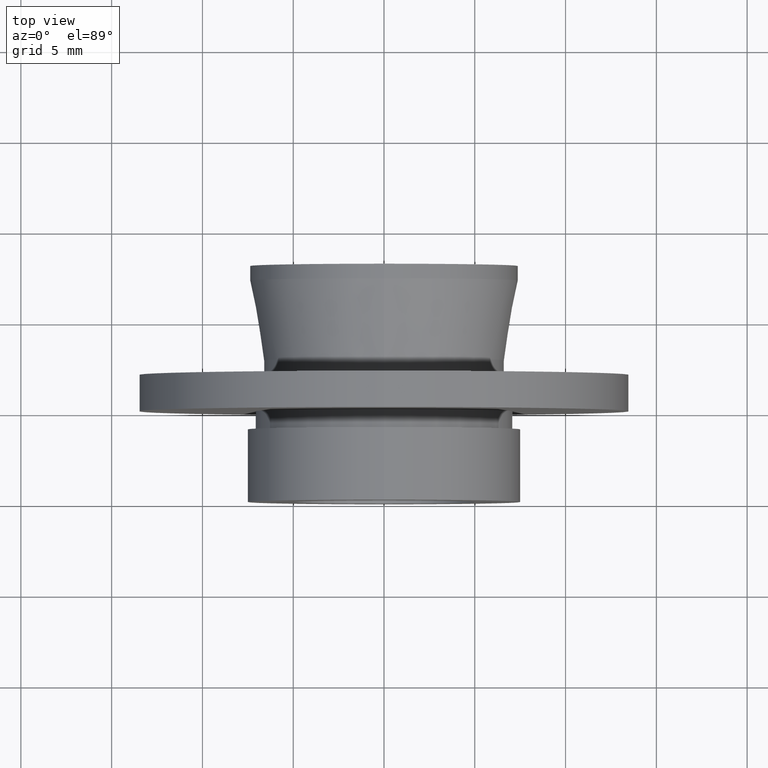
[diagram: clean part render]
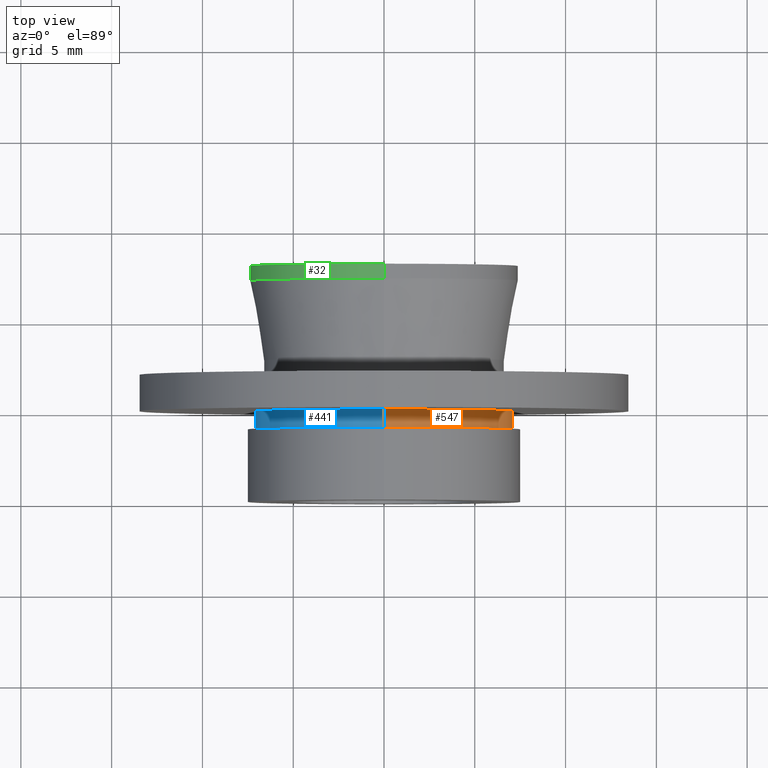
[diagram: same view with three faces highlighted in distinct colors, each labeled with its STEP entity id]
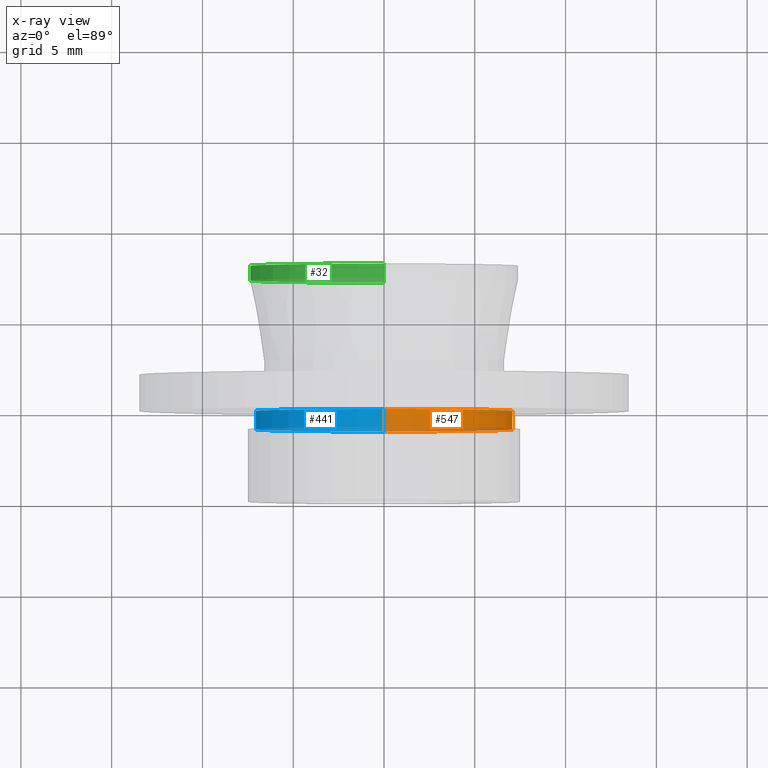
[diagram: x-ray of the same camera — body ghosted, the three highlighted faces saturated]
A machine part, top view with three faces highlighted in distinct colors.
The next image is the same camera in x-ray (body ghosted, the three faces saturated) — at least one of them is partly hidden behind the body in this view.
Their STEP definitions:

[orange] entity #547 — the highlighted cylindrical surface (partial cylindrical patch) has radius 7.1 mm, axis along (-0, -1, -0).
#31 = AXIS2_PLACEMENT_3D ( 'NONE', #145, #192, #248 ) ;
#39 = VERTEX_POINT ( 'NONE', #415 ) ;
#49 = CARTESIAN_POINT ( 'NONE',  ( 8.694992273946205800E-016, 0.0000000000000000000, 7.099999999999998800 ) ) ;
#53 = EDGE_CURVE ( 'NONE', #414, #336, #608, .T. ) ;
#79 = ORIENTED_EDGE ( 'NONE', *, *, #550, .T. ) ;
#101 = AXIS2_PLACEMENT_3D ( 'NONE', #281, #552, #385 ) ;
#124 = CARTESIAN_POINT ( 'NONE',  ( 0.0000000000000000000, 4.999999999999996400, -7.099999999999998800 ) ) ;
#145 = CARTESIAN_POINT ( 'NONE',  ( 0.0000000000000000000, 0.0000000000000000000, 0.0000000000000000000 ) ) ;
#158 = DIRECTION ( 'NONE',  ( -0.0000000000000000000, -1.000000000000000000, -0.0000000000000000000 ) ) ;
#161 = ORIENTED_EDGE ( 'NONE', *, *, #53, .T. ) ;
#192 = DIRECTION ( 'NONE',  ( -0.0000000000000000000, -1.000000000000000000, -0.0000000000000000000 ) ) ;
#213 = AXIS2_PLACEMENT_3D ( 'NONE', #420, #158, #635 ) ;
#234 = LINE ( 'NONE', #236, #663 ) ;
#236 = CARTESIAN_POINT ( 'NONE',  ( 0.0000000000000000000, 0.0000000000000000000, -7.099999999999998800 ) ) ;
#238 = CARTESIAN_POINT ( 'NONE',  ( 0.0000000000000000000, 3.999999999999996400, -7.099999999999999600 ) ) ;
#244 = CYLINDRICAL_SURFACE ( 'NONE', #31, 7.099999999999998800 ) ;
#248 = DIRECTION ( 'NONE',  ( 0.0000000000000000000, 0.0000000000000000000, -1.000000000000000000 ) ) ;
#258 = ORIENTED_EDGE ( 'NONE', *, *, #392, .F. ) ;
#281 = CARTESIAN_POINT ( 'NONE',  ( 0.0000000000000000000, 3.999999999999996400, 0.0000000000000000000 ) ) ;
#286 = EDGE_CURVE ( 'NONE', #368, #39, #382, .T. ) ;
#291 = LINE ( 'NONE', #49, #381 ) ;
#336 = VERTEX_POINT ( 'NONE', #556 ) ;
#360 = FACE_OUTER_BOUND ( 'NONE', #591, .T. ) ;
#368 = VERTEX_POINT ( 'NONE', #238 ) ;
#381 = VECTOR ( 'NONE', #455, 1000.000000000000000 ) ;
#382 = CIRCLE ( 'NONE', #101, 7.099999999999999600 ) ;
#385 = DIRECTION ( 'NONE',  ( 0.0000000000000000000, 0.0000000000000000000, -1.000000000000000000 ) ) ;
#392 = EDGE_CURVE ( 'NONE', #414, #368, #234, .T. ) ;
#414 = VERTEX_POINT ( 'NONE', #124 ) ;
#415 = CARTESIAN_POINT ( 'NONE',  ( 8.694992273946207700E-016, 3.999999999999996400, 7.100000000000000500 ) ) ;
#420 = CARTESIAN_POINT ( 'NONE',  ( 0.0000000000000000000, 4.999999999999996400, 0.0000000000000000000 ) ) ;
#455 = DIRECTION ( 'NONE',  ( -0.0000000000000000000, -1.000000000000000000, -0.0000000000000000000 ) ) ;
#520 = ORIENTED_EDGE ( 'NONE', *, *, #286, .F. ) ;
#547 = ADVANCED_FACE ( 'NONE', ( #360 ), #244, .T. ) ;
#550 = EDGE_CURVE ( 'NONE', #336, #39, #291, .T. ) ;
#552 = DIRECTION ( 'NONE',  ( -0.0000000000000000000, -1.000000000000000000, -0.0000000000000000000 ) ) ;
#556 = CARTESIAN_POINT ( 'NONE',  ( 8.694992273946205800E-016, 4.999999999999996400, 7.099999999999998800 ) ) ;
#591 = EDGE_LOOP ( 'NONE', ( #161, #79, #520, #258 ) ) ;
#602 = DIRECTION ( 'NONE',  ( -0.0000000000000000000, -1.000000000000000000, -0.0000000000000000000 ) ) ;
#608 = CIRCLE ( 'NONE', #213, 7.099999999999998800 ) ;
#635 = DIRECTION ( 'NONE',  ( 0.0000000000000000000, 0.0000000000000000000, -1.000000000000000000 ) ) ;
#663 = VECTOR ( 'NONE', #602, 1000.000000000000000 ) ;

[blue] entity #441 — the highlighted cylindrical surface (partial cylindrical patch) has radius 7.1 mm, axis along (-0, -1, -0).
#39 = VERTEX_POINT ( 'NONE', #415 ) ;
#49 = CARTESIAN_POINT ( 'NONE',  ( 8.694992273946205800E-016, 0.0000000000000000000, 7.099999999999998800 ) ) ;
#124 = CARTESIAN_POINT ( 'NONE',  ( 0.0000000000000000000, 4.999999999999996400, -7.099999999999998800 ) ) ;
#136 = CIRCLE ( 'NONE', #266, 7.099999999999999600 ) ;
#183 = FACE_OUTER_BOUND ( 'NONE', #590, .T. ) ;
#188 = ORIENTED_EDGE ( 'NONE', *, *, #656, .F. ) ;
#234 = LINE ( 'NONE', #236, #663 ) ;
#236 = CARTESIAN_POINT ( 'NONE',  ( 0.0000000000000000000, 0.0000000000000000000, -7.099999999999998800 ) ) ;
#238 = CARTESIAN_POINT ( 'NONE',  ( 0.0000000000000000000, 3.999999999999996400, -7.099999999999999600 ) ) ;
#266 = AXIS2_PLACEMENT_3D ( 'NONE', #301, #357, #410 ) ;
#290 = ORIENTED_EDGE ( 'NONE', *, *, #392, .T. ) ;
#291 = LINE ( 'NONE', #49, #381 ) ;
#301 = CARTESIAN_POINT ( 'NONE',  ( 0.0000000000000000000, 3.999999999999996400, 0.0000000000000000000 ) ) ;
#336 = VERTEX_POINT ( 'NONE', #556 ) ;
#341 = CARTESIAN_POINT ( 'NONE',  ( 0.0000000000000000000, 4.999999999999996400, 0.0000000000000000000 ) ) ;
#344 = ORIENTED_EDGE ( 'NONE', *, *, #550, .F. ) ;
#357 = DIRECTION ( 'NONE',  ( -0.0000000000000000000, -1.000000000000000000, -0.0000000000000000000 ) ) ;
#368 = VERTEX_POINT ( 'NONE', #238 ) ;
#381 = VECTOR ( 'NONE', #455, 1000.000000000000000 ) ;
#392 = EDGE_CURVE ( 'NONE', #414, #368, #234, .T. ) ;
#410 = DIRECTION ( 'NONE',  ( 0.0000000000000000000, 0.0000000000000000000, -1.000000000000000000 ) ) ;
#414 = VERTEX_POINT ( 'NONE', #124 ) ;
#415 = CARTESIAN_POINT ( 'NONE',  ( 8.694992273946207700E-016, 3.999999999999996400, 7.100000000000000500 ) ) ;
#416 = ORIENTED_EDGE ( 'NONE', *, *, #444, .T. ) ;
#441 = ADVANCED_FACE ( 'NONE', ( #183 ), #481, .T. ) ;
#444 = EDGE_CURVE ( 'NONE', #336, #414, #563, .T. ) ;
#455 = DIRECTION ( 'NONE',  ( -0.0000000000000000000, -1.000000000000000000, -0.0000000000000000000 ) ) ;
#456 = AXIS2_PLACEMENT_3D ( 'NONE', #603, #612, #566 ) ;
#481 = CYLINDRICAL_SURFACE ( 'NONE', #456, 7.099999999999998800 ) ;
#492 = AXIS2_PLACEMENT_3D ( 'NONE', #341, #666, #564 ) ;
#550 = EDGE_CURVE ( 'NONE', #336, #39, #291, .T. ) ;
#556 = CARTESIAN_POINT ( 'NONE',  ( 8.694992273946205800E-016, 4.999999999999996400, 7.099999999999998800 ) ) ;
#563 = CIRCLE ( 'NONE', #492, 7.099999999999998800 ) ;
#564 = DIRECTION ( 'NONE',  ( 0.0000000000000000000, 0.0000000000000000000, -1.000000000000000000 ) ) ;
#566 = DIRECTION ( 'NONE',  ( 0.0000000000000000000, 0.0000000000000000000, -1.000000000000000000 ) ) ;
#590 = EDGE_LOOP ( 'NONE', ( #344, #416, #290, #188 ) ) ;
#602 = DIRECTION ( 'NONE',  ( -0.0000000000000000000, -1.000000000000000000, -0.0000000000000000000 ) ) ;
#603 = CARTESIAN_POINT ( 'NONE',  ( 0.0000000000000000000, 0.0000000000000000000, 0.0000000000000000000 ) ) ;
#612 = DIRECTION ( 'NONE',  ( -0.0000000000000000000, -1.000000000000000000, -0.0000000000000000000 ) ) ;
#656 = EDGE_CURVE ( 'NONE', #39, #368, #136, .T. ) ;
#663 = VECTOR ( 'NONE', #602, 1000.000000000000000 ) ;
#666 = DIRECTION ( 'NONE',  ( -0.0000000000000000000, -1.000000000000000000, -0.0000000000000000000 ) ) ;

[green] entity #32 — the highlighted cylindrical surface (partial cylindrical patch) has radius 7.365 mm, axis along (-0, -1, -0).
#8 = CARTESIAN_POINT ( 'NONE',  ( 9.019523675720257200E-016, 13.00000000000000200, 7.365000000000000200 ) ) ;
#32 = ADVANCED_FACE ( 'NONE', ( #565 ), #371, .T. ) ;
#46 = ORIENTED_EDGE ( 'NONE', *, *, #437, .F. ) ;
#50 = VECTOR ( 'NONE', #640, 1000.000000000000000 ) ;
#83 = ORIENTED_EDGE ( 'NONE', *, *, #84, .F. ) ;
#84 = EDGE_CURVE ( 'NONE', #562, #313, #523, .T. ) ;
#137 = CARTESIAN_POINT ( 'NONE',  ( 0.0000000000000000000, 0.0000000000000000000, -7.365000000000000200 ) ) ;
#138 = CARTESIAN_POINT ( 'NONE',  ( 0.0000000000000000000, 12.20000000000000100, -7.365000000000001100 ) ) ;
#162 = LINE ( 'NONE', #484, #331 ) ;
#201 = CARTESIAN_POINT ( 'NONE',  ( 0.0000000000000000000, 0.0000000000000000000, 0.0000000000000000000 ) ) ;
#210 = CARTESIAN_POINT ( 'NONE',  ( 0.0000000000000000000, 12.20000000000000100, 0.0000000000000000000 ) ) ;
#277 = EDGE_LOOP ( 'NONE', ( #46, #405, #636, #83 ) ) ;
#287 = DIRECTION ( 'NONE',  ( -0.0000000000000000000, -1.000000000000000000, -0.0000000000000000000 ) ) ;
#292 = DIRECTION ( 'NONE',  ( -0.0000000000000000000, -1.000000000000000000, -0.0000000000000000000 ) ) ;
#293 = DIRECTION ( 'NONE',  ( 0.0000000000000000000, 0.0000000000000000000, -1.000000000000000000 ) ) ;
#298 = AXIS2_PLACEMENT_3D ( 'NONE', #210, #430, #473 ) ;
#307 = DIRECTION ( 'NONE',  ( 0.0000000000000000000, 0.0000000000000000000, -1.000000000000000000 ) ) ;
#313 = VERTEX_POINT ( 'NONE', #138 ) ;
#331 = VECTOR ( 'NONE', #287, 1000.000000000000000 ) ;
#334 = EDGE_CURVE ( 'NONE', #522, #313, #417, .T. ) ;
#371 = CYLINDRICAL_SURFACE ( 'NONE', #468, 7.365000000000000200 ) ;
#405 = ORIENTED_EDGE ( 'NONE', *, *, #509, .T. ) ;
#417 = LINE ( 'NONE', #137, #50 ) ;
#430 = DIRECTION ( 'NONE',  ( -0.0000000000000000000, -1.000000000000000000, -0.0000000000000000000 ) ) ;
#437 = EDGE_CURVE ( 'NONE', #600, #562, #162, .T. ) ;
#451 = CARTESIAN_POINT ( 'NONE',  ( 0.0000000000000000000, 13.00000000000000200, -7.365000000000000200 ) ) ;
#468 = AXIS2_PLACEMENT_3D ( 'NONE', #201, #620, #307 ) ;
#473 = DIRECTION ( 'NONE',  ( 0.0000000000000000000, 0.0000000000000000000, -1.000000000000000000 ) ) ;
#484 = CARTESIAN_POINT ( 'NONE',  ( 9.019523675720257200E-016, 0.0000000000000000000, 7.365000000000000200 ) ) ;
#505 = CARTESIAN_POINT ( 'NONE',  ( 9.019523675720259200E-016, 12.20000000000000100, 7.365000000000002000 ) ) ;
#509 = EDGE_CURVE ( 'NONE', #600, #522, #646, .T. ) ;
#522 = VERTEX_POINT ( 'NONE', #451 ) ;
#523 = CIRCLE ( 'NONE', #298, 7.365000000000001100 ) ;
#561 = CARTESIAN_POINT ( 'NONE',  ( 0.0000000000000000000, 13.00000000000000200, 0.0000000000000000000 ) ) ;
#562 = VERTEX_POINT ( 'NONE', #505 ) ;
#565 = FACE_OUTER_BOUND ( 'NONE', #277, .T. ) ;
#599 = AXIS2_PLACEMENT_3D ( 'NONE', #561, #292, #293 ) ;
#600 = VERTEX_POINT ( 'NONE', #8 ) ;
#620 = DIRECTION ( 'NONE',  ( -0.0000000000000000000, -1.000000000000000000, -0.0000000000000000000 ) ) ;
#636 = ORIENTED_EDGE ( 'NONE', *, *, #334, .T. ) ;
#640 = DIRECTION ( 'NONE',  ( -0.0000000000000000000, -1.000000000000000000, -0.0000000000000000000 ) ) ;
#646 = CIRCLE ( 'NONE', #599, 7.365000000000000200 ) ;